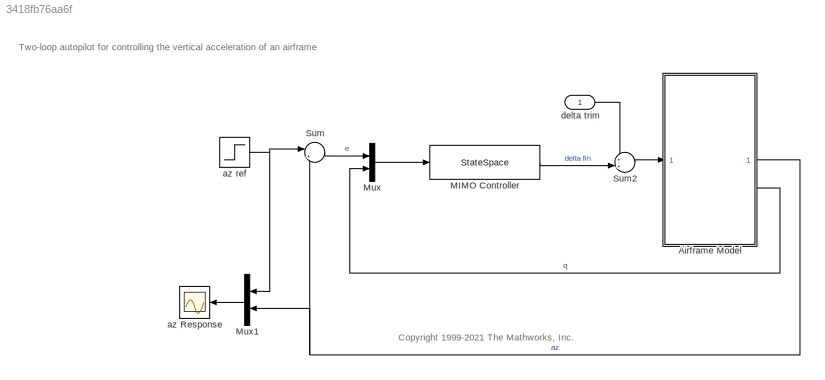
MODEL slx_3418fb76aa6f
KIND model
CONFIG AbsTol = 1e-6
CONFIG EnableMultiTasking = off
CONFIG FixedStep = auto
CONFIG MaxStep = auto
CONFIG MinStep = auto
CONFIG RelTol = 1e-3
CONFIG SampleTimeConstraint = Unconstrained
CONFIG SolverName = ode23t
CONFIG StartTime = 0.0
CONFIG StopTime = 5
WORKSPACE source: mxarray member
WORKSPACE Beamwidth = 0.174532925199
WORKSPACE Cm_alpha = [7.78 7.179815 6.59412 6.024205 5.47136 4.936875 4.42204 3.928145 3.45648 3.008335 2.585 2.187765 ... (205 elements, 41x5)]
WORKSPACE Cm_el = -11.8029305797
WORKSPACE Cm_q = -1.719
WORKSPACE Cx_alpha = [-0.3 -0.3 -0.3 -0.3 -0.3 -0.3 -0.3 -0.3 -0.3 -0.3 -0.3 -0.3 ... (205 elements, 41x5)]
WORKSPACE Cz_alpha = [7.47866666667 7.00150633333 6.531504 6.06927766667 5.61544533333 5.170625 4.73543466667 4.31049233333 3.896416 3.49382366667 3.10333333333 2.725563 ... (205 elements, 41x5)]
WORKSPACE Cz_el = -1.94805650344
WORKSPACE Iyy = 247.436636441
WORKSPACE K_r = -0.02
WORKSPACE Kg2slug = 0.0685218
WORKSPACE Ks = 125.663706144
WORKSPACE L = 0.0065
WORKSPACE M = [2 2 2 2 2 2 2 2 2 2 2 2 ... (205 elements, 41x5)]
WORKSPACE Mach_vec = [2 2.5 3 3.5 4]
WORKSPACE P0 = 101325
WORKSPACE R = 287.26
WORKSPACE S_ref = 0.0408773349839
WORKSPACE T0 = 288.16
WORKSPACE Thrust = 10000
WORKSPACE al = [-20 -19 -18 -17 -16 -15 -14 -13 -12 -11 -10 -9 ... (205 elements, 41x5)]
WORKSPACE alpha_ini = 0
WORKSPACE alpha_vec = [-0.349065850399 -0.331612557879 -0.314159265359 -0.296705972839 -0.279252680319 -0.261799387799 -0.244346095279 -0.226892802759 -0.209439510239 -0.191986217719 -0.174532925199 -0.157079632679 ... (41 elements, 41x1)]
WORKSPACE am = 0.000215
WORKSPACE an = 0.000103
WORKSPACE bm = -0.0195
WORKSPACE bn = -0.00945
WORKSPACE cm = 0.051
WORKSPACE cn = -0.1696
WORKSPACE d2r = 0.0174532925199
WORKSPACE d_ref = 0.228599992685
WORKSPACE fin_act_0 = 0
WORKSPACE fin_max = 0.523598775598
WORKSPACE fin_maxrate = 8.72664625997
WORKSPACE fin_min = -0.523598775598
WORKSPACE g = 9.81
WORKSPACE gam = 1.403
WORKSPACE h_ini = 3047.99990246
WORKSPACE h_trop = 11000
WORKSPACE l_acc = 0.5
WORKSPACE m2ft = 3.28084
WORKSPACE mass = 204.022661401
WORKSPACE max_gimbal = 0.610865238198
WORKSPACE min_gimbal = -0.610865238198
WORKSPACE pos_tgt = [4500 -3547.99990246]
WORKSPACE q_ini = 0
WORKSPACE rho0 = 1.225
WORKSPACE theta_ini = 0
WORKSPACE theta_tgt = 3.14159265359
WORKSPACE tors = 0.05
WORKSPACE v_ini = 984
WORKSPACE v_tgt = 328
WORKSPACE wgyro = 628.318530718
WORKSPACE wn_fin = 150
WORKSPACE wn_hom = 7
WORKSPACE x_ini = 0
WORKSPACE z_fin = 0.7
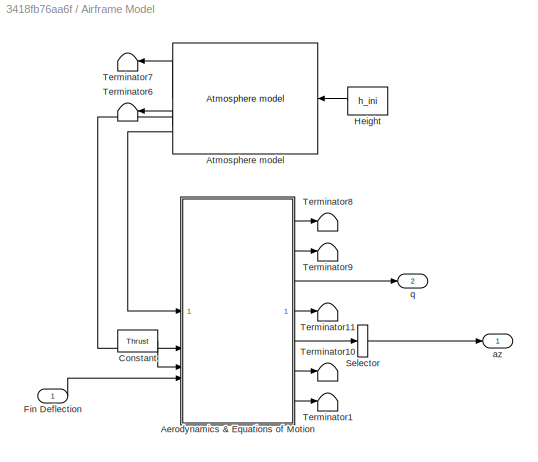
BLOCK [SubSystem] Airframe Model
  RTWMemSecDataConstants = Default
  RTWMemSecDataInternal = Default
  RTWMemSecDataParameters = Default
  RTWMemSecFuncExecute = Default
  RTWMemSecFuncInitTerm = Default
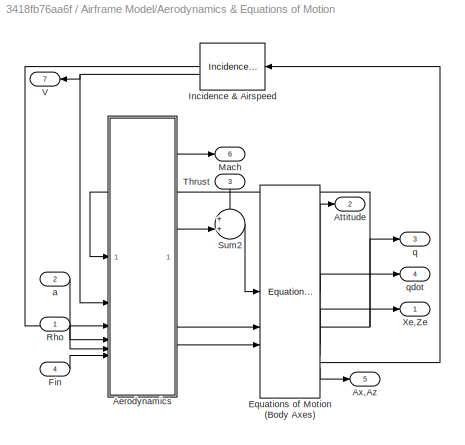
BLOCK [SubSystem] Airframe Model/Aerodynamics & Equations of Motion
  RTWMemSecDataConstants = Default
  RTWMemSecDataInternal = Default
  RTWMemSecDataParameters = Default
  RTWMemSecFuncExecute = Default
  RTWMemSecFuncInitTerm = Default
BLOCK [Reference] Airframe Model/Aerodynamics & Equations of Motion/ Equations of Motion (Body Axes)  REF=aerospace/3DoF  (lib defined in mdl_cf564d925549, slx_1354fe9238a2, +3 more)
Equations
of
Motion / Equations of Motion
(Body Axes)
  SourceBlock = aerospace/3DoF\nEquations\nof\nMotion / Equations of Motion\n(Body Axes)
  SourceType = 3 DOF equations of motion
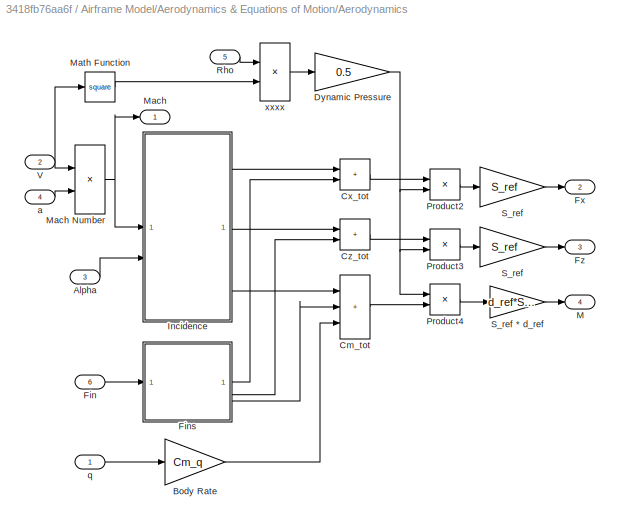
BLOCK [SubSystem] Airframe Model/Aerodynamics & Equations of Motion/Aerodynamics
  RTWMemSecDataConstants = Default
  RTWMemSecDataInternal = Default
  RTWMemSecDataParameters = Default
  RTWMemSecFuncExecute = Default
  RTWMemSecFuncInitTerm = Default
BLOCK [Outport] Airframe Model/Aerodynamics & Equations of Motion/Aerodynamics/ M
  InitialOutput = 0
  Port = 4
BLOCK [Outport] Airframe Model/Aerodynamics & Equations of Motion/Aerodynamics/ Mach
  InitialOutput = 0
  NameLocation = top
BLOCK [Inport] Airframe Model/Aerodynamics & Equations of Motion/Aerodynamics/Alpha
  Port = 3
BLOCK [Gain] Airframe Model/Aerodynamics & Equations of Motion/Aerodynamics/Body Rate
  Gain = Cm_q
  OutDataTypeStr = Inherit: Same as input
  ParamDataTypeStr = Inherit: Same as input
  SaturateOnIntegerOverflow = on
BLOCK [Sum] Airframe Model/Aerodynamics & Equations of Motion/Aerodynamics/Cm_tot
  IconShape = rectangular
  InputSameDT = on
  Inputs = +++
  OutDataTypeStr = Inherit: Same as first input
  SaturateOnIntegerOverflow = on
BLOCK [Sum] Airframe Model/Aerodynamics & Equations of Motion/Aerodynamics/Cx_tot
  IconShape = rectangular
  InputSameDT = on
  OutDataTypeStr = Inherit: Same as first input
  SaturateOnIntegerOverflow = on
BLOCK [Sum] Airframe Model/Aerodynamics & Equations of Motion/Aerodynamics/Cz_tot
  IconShape = rectangular
  InputSameDT = on
  OutDataTypeStr = Inherit: Same as first input
  SaturateOnIntegerOverflow = on
BLOCK [Gain] Airframe Model/Aerodynamics & Equations of Motion/Aerodynamics/Dynamic Pressure
  Gain = 0.5
  OutDataTypeStr = Inherit: Same as input
  ParamDataTypeStr = Inherit: Same as input
  SaturateOnIntegerOverflow = on
BLOCK [Inport] Airframe Model/Aerodynamics & Equations of Motion/Aerodynamics/Fin
  Port = 6
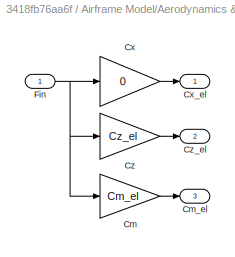
BLOCK [SubSystem] Airframe Model/Aerodynamics & Equations of Motion/Aerodynamics/Fins
  RTWMemSecDataConstants = Default
  RTWMemSecDataInternal = Default
  RTWMemSecDataParameters = Default
  RTWMemSecFuncExecute = Default
  RTWMemSecFuncInitTerm = Default
BLOCK [Gain] Airframe Model/Aerodynamics & Equations of Motion/Aerodynamics/Fins/Cm
  Gain = Cm_el
  OutDataTypeStr = Inherit: Same as input
  ParamDataTypeStr = Inherit: Same as input
  SaturateOnIntegerOverflow = on
BLOCK [Outport] Airframe Model/Aerodynamics & Equations of Motion/Aerodynamics/Fins/Cm_el
  InitialOutput = 0
  Port = 3
BLOCK [Gain] Airframe Model/Aerodynamics & Equations of Motion/Aerodynamics/Fins/Cx
  Gain = 0
  OutDataTypeStr = Inherit: Same as input
  ParamDataTypeStr = Inherit: Same as input
  SaturateOnIntegerOverflow = on
BLOCK [Outport] Airframe Model/Aerodynamics & Equations of Motion/Aerodynamics/Fins/Cx_el
  InitialOutput = 0
BLOCK [Gain] Airframe Model/Aerodynamics & Equations of Motion/Aerodynamics/Fins/Cz
  Gain = Cz_el
  OutDataTypeStr = Inherit: Same as input
  ParamDataTypeStr = Inherit: Same as input
  SaturateOnIntegerOverflow = on
BLOCK [Outport] Airframe Model/Aerodynamics & Equations of Motion/Aerodynamics/Fins/Cz_el
  InitialOutput = 0
  Port = 2
BLOCK [Inport] Airframe Model/Aerodynamics & Equations of Motion/Aerodynamics/Fins/Fin
BLOCK [Outport] Airframe Model/Aerodynamics & Equations of Motion/Aerodynamics/Fx
  InitialOutput = [0]
  Port = 2
BLOCK [Outport] Airframe Model/Aerodynamics & Equations of Motion/Aerodynamics/Fz
  InitialOutput = 0
  Port = 3
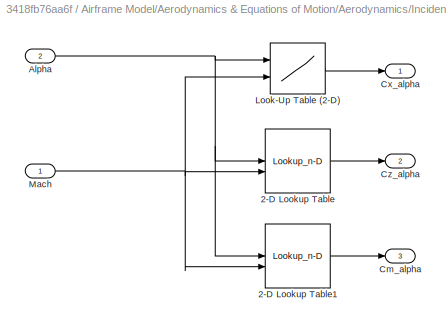
BLOCK [SubSystem] Airframe Model/Aerodynamics & Equations of Motion/Aerodynamics/Incidence
  RTWMemSecDataConstants = Default
  RTWMemSecDataInternal = Default
  RTWMemSecDataParameters = Default
  RTWMemSecFuncExecute = Default
  RTWMemSecFuncInitTerm = Default
BLOCK [Lookup_n-D] Airframe Model/Aerodynamics & Equations of Motion/Aerodynamics/Incidence/2-D Lookup Table
  BreakpointsForDimension1 = alpha_vec
  BreakpointsForDimension2 = Mach_vec
  InputPortMap = u0,u1
  RndMeth = Simplest
  Table = Cz_alpha
BLOCK [Lookup_n-D] Airframe Model/Aerodynamics & Equations of Motion/Aerodynamics/Incidence/2-D Lookup Table1
  BreakpointsForDimension1 = alpha_vec
  BreakpointsForDimension2 = Mach_vec
  InputPortMap = u0,u1
  RndMeth = Simplest
  Table = Cm_alpha
BLOCK [Inport] Airframe Model/Aerodynamics & Equations of Motion/Aerodynamics/Incidence/Alpha
  Port = 2
BLOCK [Outport] Airframe Model/Aerodynamics & Equations of Motion/Aerodynamics/Incidence/Cm_alpha
  InitialOutput = 0
  Port = 3
BLOCK [Outport] Airframe Model/Aerodynamics & Equations of Motion/Aerodynamics/Incidence/Cx_alpha
  InitialOutput = 0
BLOCK [Outport] Airframe Model/Aerodynamics & Equations of Motion/Aerodynamics/Incidence/Cz_alpha
  InitialOutput = 0
  Port = 2
BLOCK [Lookup2D] Airframe Model/Aerodynamics & Equations of Motion/Aerodynamics/Incidence/Look-Up Table (2-D)
  ColumnIndex = Mach_vec
  InputSameDT = off
  RowIndex = alpha_vec
  Table = Cx_alpha
BLOCK [Inport] Airframe Model/Aerodynamics & Equations of Motion/Aerodynamics/Incidence/Mach
BLOCK [Product] Airframe Model/Aerodynamics & Equations of Motion/Aerodynamics/Mach Number
  InputSameDT = on
  Inputs = */
  OutDataTypeStr = Inherit: Same as first input
  SaturateOnIntegerOverflow = on
BLOCK [Math] Airframe Model/Aerodynamics & Equations of Motion/Aerodynamics/Math Function
  Operator = square
  SignedPower = on
BLOCK [Product] Airframe Model/Aerodynamics & Equations of Motion/Aerodynamics/Product2
  InputSameDT = on
  OutDataTypeStr = Inherit: Same as first input
  SaturateOnIntegerOverflow = on
BLOCK [Product] Airframe Model/Aerodynamics & Equations of Motion/Aerodynamics/Product3
  InputSameDT = on
  OutDataTypeStr = Inherit: Same as first input
  SaturateOnIntegerOverflow = on
BLOCK [Product] Airframe Model/Aerodynamics & Equations of Motion/Aerodynamics/Product4
  InputSameDT = on
  OutDataTypeStr = Inherit: Same as first input
  SaturateOnIntegerOverflow = on
BLOCK [Inport] Airframe Model/Aerodynamics & Equations of Motion/Aerodynamics/Rho
  NameLocation = top
  Port = 5
BLOCK [Gain] Airframe Model/Aerodynamics & Equations of Motion/Aerodynamics/S_ref
  Gain = S_ref
  OutDataTypeStr = Inherit: Same as input
  ParamDataTypeStr = Inherit: Same as input
  SaturateOnIntegerOverflow = on
BLOCK [Gain] Airframe Model/Aerodynamics & Equations of Motion/Aerodynamics/S_ref 
  Gain = S_ref
  OutDataTypeStr = Inherit: Same as input
  ParamDataTypeStr = Inherit: Same as input
  SaturateOnIntegerOverflow = on
BLOCK [Gain] Airframe Model/Aerodynamics & Equations of Motion/Aerodynamics/S_ref * d_ref
  Gain = d_ref*S_ref
  OutDataTypeStr = Inherit: Same as input
  ParamDataTypeStr = Inherit: Same as input
  SaturateOnIntegerOverflow = on
BLOCK [Inport] Airframe Model/Aerodynamics & Equations of Motion/Aerodynamics/V
  Port = 2
BLOCK [Inport] Airframe Model/Aerodynamics & Equations of Motion/Aerodynamics/a
  Port = 4
BLOCK [Inport] Airframe Model/Aerodynamics & Equations of Motion/Aerodynamics/q
BLOCK [Product] Airframe Model/Aerodynamics & Equations of Motion/Aerodynamics/xxxx
  InputSameDT = on
  OutDataTypeStr = Inherit: Same as first input
  SaturateOnIntegerOverflow = on
BLOCK [Outport] Airframe Model/Aerodynamics & Equations of Motion/Attitude
  InitialOutput = 0
  Port = 2
BLOCK [Outport] Airframe Model/Aerodynamics & Equations of Motion/Ax,Az
  InitialOutput = 0
  Port = 5
BLOCK [Inport] Airframe Model/Aerodynamics & Equations of Motion/Fin
  Port = 4
BLOCK [Reference] Airframe Model/Aerodynamics & Equations of Motion/Incidence & Airspeed  REF=aerospace/3DoF  (lib defined in mdl_cf564d925549, slx_1354fe9238a2, +3 more)
Equations
of
Motion /Incidence 
& Airspeed
  NameLocation = top
  SourceBlock = aerospace/3DoF\nEquations\nof\nMotion /Incidence \n& Airspeed
  SourceType = Incidence and Airspeed
BLOCK [Outport] Airframe Model/Aerodynamics & Equations of Motion/Mach
  InitialOutput = 0
  NameLocation = top
  Port = 6
BLOCK [Inport] Airframe Model/Aerodynamics & Equations of Motion/Rho
BLOCK [Sum] Airframe Model/Aerodynamics & Equations of Motion/Sum2
  InputSameDT = on
  Inputs = ++|
  OutDataTypeStr = Inherit: Same as first input
  SaturateOnIntegerOverflow = on
BLOCK [Inport] Airframe Model/Aerodynamics & Equations of Motion/Thrust
  NameLocation = left
  Port = 3
BLOCK [Outport] Airframe Model/Aerodynamics & Equations of Motion/V
  InitialOutput = 0
  Port = 7
BLOCK [Outport] Airframe Model/Aerodynamics & Equations of Motion/Xe,Ze
  InitialOutput = 0
BLOCK [Inport] Airframe Model/Aerodynamics & Equations of Motion/a
  Port = 2
BLOCK [Outport] Airframe Model/Aerodynamics & Equations of Motion/q
  InitialOutput = 0
  Port = 3
BLOCK [Outport] Airframe Model/Aerodynamics & Equations of Motion/qdot
  InitialOutput = 0
  Port = 4
BLOCK [Reference] Airframe Model/Atmosphere model  REF=aerospace/Atmosphere/Atmosphere  (lib defined in mdl_cf564d925549, slx_1354fe9238a2, +3 more)
model
  SourceBlock = aerospace/Atmosphere/Atmosphere\nmodel
  SourceType = Atmosphere Model
BLOCK [Constant] Airframe Model/Constant
  Value = Thrust
BLOCK [Inport] Airframe Model/Fin Deflection
BLOCK [Constant] Airframe Model/Height
  Value = h_ini
BLOCK [Selector] Airframe Model/Selector
  IndexOptions = Index vector (dialog)
  Indices = [2]
  InputPortWidth = 2
  OutputSizes = 1
BLOCK [Terminator] Airframe Model/Terminator1
BLOCK [Terminator] Airframe Model/Terminator10
BLOCK [Terminator] Airframe Model/Terminator11
BLOCK [Terminator] Airframe Model/Terminator6
BLOCK [Terminator] Airframe Model/Terminator7
BLOCK [Terminator] Airframe Model/Terminator8
BLOCK [Terminator] Airframe Model/Terminator9
BLOCK [Outport] Airframe Model/az
  InitialOutput = 0
BLOCK [Outport] Airframe Model/q
  InitialOutput = 0
  Port = 2
BLOCK [StateSpace] MIMO Controller
  A = [0 0.08;0 0]
  B = [0.003 1;0.125 0]
  C = [1.5 0]
  D = [0 0]
  InitialCondition = 0
BLOCK [Mux] Mux
  DisplayOption = bar
  Inputs = 2
BLOCK [Mux] Mux1
  DisplayOption = bar
  Inputs = 2
  NameLocation = top
BLOCK [Sum] Sum
  Inputs = |+-
  SaturateOnIntegerOverflow = on
BLOCK [Sum] Sum2
  Inputs = ++|
BLOCK [Scope] az Response
  Floating = off
  NumInputPorts = 1
  ScopeSpecificationString = Simulink.scopes.TimeScopeBlockCfg('CurrentConfiguration', extmgr.ConfigurationSet(extmgr.Configuration('Core','General UI',true,'ShowNewAction',false,'ShowLoadConfigSet',false,'ShowSaveConfigSet',false,'DisplayFullSourceName',false,'MessageLogAutoOpenMode','for warn/fail messages','MessageLogDialogPosition',[20 520 450 500],'ShowMainToolbar',true,'ShowPlaybackToolbar',false,'ShowStatusbar',true,'S...<+3011ch>
BLOCK [Step] az ref
  After = 200
  NameLocation = top
  SampleTime = 0
BLOCK [Inport] delta trim
ANNOTATION (root): <copyright redacted>
ANNOTATION (root): Two-loop autopilot for controlling the vertical acceleration of an airframe
LINE Airframe Model/Aerodynamics & Equations of Motion/ Equations of Motion (Body Axes):1 -> Airframe Model/Aerodynamics & Equations of Motion/Attitude:1
NET Airframe Model/Aerodynamics & Equations of Motion/ Equations of Motion (Body Axes):2 -> Airframe Model/Aerodynamics & Equations of Motion/Aerodynamics:1, Airframe Model/Aerodynamics & Equations of Motion/q:1
LINE Airframe Model/Aerodynamics & Equations of Motion/ Equations of Motion (Body Axes):3 -> Airframe Model/Aerodynamics & Equations of Motion/qdot:1
LINE Airframe Model/Aerodynamics & Equations of Motion/ Equations of Motion (Body Axes):4 -> Airframe Model/Aerodynamics & Equations of Motion/Xe,Ze:1
LINE Airframe Model/Aerodynamics & Equations of Motion/ Equations of Motion (Body Axes):5 -> Airframe Model/Aerodynamics & Equations of Motion/Incidence & Airspeed:1
LINE Airframe Model/Aerodynamics & Equations of Motion/ Equations of Motion (Body Axes):6 -> Airframe Model/Aerodynamics & Equations of Motion/Ax,Az:1
LINE Airframe Model/Aerodynamics & Equations of Motion/Aerodynamics/Alpha:1 -> Airframe Model/Aerodynamics & Equations of Motion/Aerodynamics/Incidence:2
LINE Airframe Model/Aerodynamics & Equations of Motion/Aerodynamics/Body Rate:1 -> Airframe Model/Aerodynamics & Equations of Motion/Aerodynamics/Cm_tot:3
LINE Airframe Model/Aerodynamics & Equations of Motion/Aerodynamics/Cm_tot:1 -> Airframe Model/Aerodynamics & Equations of Motion/Aerodynamics/Product4:2
LINE Airframe Model/Aerodynamics & Equations of Motion/Aerodynamics/Cx_tot:1 -> Airframe Model/Aerodynamics & Equations of Motion/Aerodynamics/Product2:1
LINE Airframe Model/Aerodynamics & Equations of Motion/Aerodynamics/Cz_tot:1 -> Airframe Model/Aerodynamics & Equations of Motion/Aerodynamics/Product3:1
NET Airframe Model/Aerodynamics & Equations of Motion/Aerodynamics/Dynamic Pressure:1 -> Airframe Model/Aerodynamics & Equations of Motion/Aerodynamics/Product2:2, Airframe Model/Aerodynamics & Equations of Motion/Aerodynamics/Product3:2, Airframe Model/Aerodynamics & Equations of Motion/Aerodynamics/Product4:1
LINE Airframe Model/Aerodynamics & Equations of Motion/Aerodynamics/Fin:1 -> Airframe Model/Aerodynamics & Equations of Motion/Aerodynamics/Fins:1
LINE Airframe Model/Aerodynamics & Equations of Motion/Aerodynamics/Fins/Cm:1 -> Airframe Model/Aerodynamics & Equations of Motion/Aerodynamics/Fins/Cm_el:1
LINE Airframe Model/Aerodynamics & Equations of Motion/Aerodynamics/Fins/Cx:1 -> Airframe Model/Aerodynamics & Equations of Motion/Aerodynamics/Fins/Cx_el:1
LINE Airframe Model/Aerodynamics & Equations of Motion/Aerodynamics/Fins/Cz:1 -> Airframe Model/Aerodynamics & Equations of Motion/Aerodynamics/Fins/Cz_el:1
NET Airframe Model/Aerodynamics & Equations of Motion/Aerodynamics/Fins/Fin:1 -> Airframe Model/Aerodynamics & Equations of Motion/Aerodynamics/Fins/Cm:1, Airframe Model/Aerodynamics & Equations of Motion/Aerodynamics/Fins/Cx:1, Airframe Model/Aerodynamics & Equations of Motion/Aerodynamics/Fins/Cz:1
LINE Airframe Model/Aerodynamics & Equations of Motion/Aerodynamics/Fins:1 -> Airframe Model/Aerodynamics & Equations of Motion/Aerodynamics/Cx_tot:2
LINE Airframe Model/Aerodynamics & Equations of Motion/Aerodynamics/Fins:2 -> Airframe Model/Aerodynamics & Equations of Motion/Aerodynamics/Cz_tot:2
LINE Airframe Model/Aerodynamics & Equations of Motion/Aerodynamics/Fins:3 -> Airframe Model/Aerodynamics & Equations of Motion/Aerodynamics/Cm_tot:2
LINE Airframe Model/Aerodynamics & Equations of Motion/Aerodynamics/Incidence/2-D Lookup Table1:1 -> Airframe Model/Aerodynamics & Equations of Motion/Aerodynamics/Incidence/Cm_alpha:1
LINE Airframe Model/Aerodynamics & Equations of Motion/Aerodynamics/Incidence/2-D Lookup Table:1 -> Airframe Model/Aerodynamics & Equations of Motion/Aerodynamics/Incidence/Cz_alpha:1
NET Airframe Model/Aerodynamics & Equations of Motion/Aerodynamics/Incidence/Alpha:1 -> Airframe Model/Aerodynamics & Equations of Motion/Aerodynamics/Incidence/2-D Lookup Table1:1, Airframe Model/Aerodynamics & Equations of Motion/Aerodynamics/Incidence/2-D Lookup Table:1, Airframe Model/Aerodynamics & Equations of Motion/Aerodynamics/Incidence/Look-Up Table (2-D):1
LINE Airframe Model/Aerodynamics & Equations of Motion/Aerodynamics/Incidence/Look-Up Table (2-D):1 -> Airframe Model/Aerodynamics & Equations of Motion/Aerodynamics/Incidence/Cx_alpha:1
NET Airframe Model/Aerodynamics & Equations of Motion/Aerodynamics/Incidence/Mach:1 -> Airframe Model/Aerodynamics & Equations of Motion/Aerodynamics/Incidence/2-D Lookup Table1:2, Airframe Model/Aerodynamics & Equations of Motion/Aerodynamics/Incidence/2-D Lookup Table:2, Airframe Model/Aerodynamics & Equations of Motion/Aerodynamics/Incidence/Look-Up Table (2-D):2
LINE Airframe Model/Aerodynamics & Equations of Motion/Aerodynamics/Incidence:1 -> Airframe Model/Aerodynamics & Equations of Motion/Aerodynamics/Cx_tot:1
LINE Airframe Model/Aerodynamics & Equations of Motion/Aerodynamics/Incidence:2 -> Airframe Model/Aerodynamics & Equations of Motion/Aerodynamics/Cz_tot:1
LINE Airframe Model/Aerodynamics & Equations of Motion/Aerodynamics/Incidence:3 -> Airframe Model/Aerodynamics & Equations of Motion/Aerodynamics/Cm_tot:1
NET Airframe Model/Aerodynamics & Equations of Motion/Aerodynamics/Mach Number:1 -> Airframe Model/Aerodynamics & Equations of Motion/Aerodynamics/ Mach:1, Airframe Model/Aerodynamics & Equations of Motion/Aerodynamics/Incidence:1
LINE Airframe Model/Aerodynamics & Equations of Motion/Aerodynamics/Math Function:1 -> Airframe Model/Aerodynamics & Equations of Motion/Aerodynamics/xxxx:2
LINE Airframe Model/Aerodynamics & Equations of Motion/Aerodynamics/Product2:1 -> Airframe Model/Aerodynamics & Equations of Motion/Aerodynamics/S_ref:1
LINE Airframe Model/Aerodynamics & Equations of Motion/Aerodynamics/Product3:1 -> Airframe Model/Aerodynamics & Equations of Motion/Aerodynamics/S_ref :1
LINE Airframe Model/Aerodynamics & Equations of Motion/Aerodynamics/Product4:1 -> Airframe Model/Aerodynamics & Equations of Motion/Aerodynamics/S_ref * d_ref:1
LINE Airframe Model/Aerodynamics & Equations of Motion/Aerodynamics/Rho:1 -> Airframe Model/Aerodynamics & Equations of Motion/Aerodynamics/xxxx:1
LINE Airframe Model/Aerodynamics & Equations of Motion/Aerodynamics/S_ref * d_ref:1 -> Airframe Model/Aerodynamics & Equations of Motion/Aerodynamics/ M:1
LINE Airframe Model/Aerodynamics & Equations of Motion/Aerodynamics/S_ref :1 -> Airframe Model/Aerodynamics & Equations of Motion/Aerodynamics/Fz:1
LINE Airframe Model/Aerodynamics & Equations of Motion/Aerodynamics/S_ref:1 -> Airframe Model/Aerodynamics & Equations of Motion/Aerodynamics/Fx:1
NET Airframe Model/Aerodynamics & Equations of Motion/Aerodynamics/V:1 -> Airframe Model/Aerodynamics & Equations of Motion/Aerodynamics/Mach Number:1, Airframe Model/Aerodynamics & Equations of Motion/Aerodynamics/Math Function:1
LINE Airframe Model/Aerodynamics & Equations of Motion/Aerodynamics/a:1 -> Airframe Model/Aerodynamics & Equations of Motion/Aerodynamics/Mach Number:2
LINE Airframe Model/Aerodynamics & Equations of Motion/Aerodynamics/q:1 -> Airframe Model/Aerodynamics & Equations of Motion/Aerodynamics/Body Rate:1
LINE Airframe Model/Aerodynamics & Equations of Motion/Aerodynamics/xxxx:1 -> Airframe Model/Aerodynamics & Equations of Motion/Aerodynamics/Dynamic Pressure:1
LINE Airframe Model/Aerodynamics & Equations of Motion/Aerodynamics:1 -> Airframe Model/Aerodynamics & Equations of Motion/Mach:1
LINE Airframe Model/Aerodynamics & Equations of Motion/Aerodynamics:2 -> Airframe Model/Aerodynamics & Equations of Motion/Sum2:2
LINE Airframe Model/Aerodynamics & Equations of Motion/Aerodynamics:3 -> Airframe Model/Aerodynamics & Equations of Motion/ Equations of Motion (Body Axes):2
LINE Airframe Model/Aerodynamics & Equations of Motion/Aerodynamics:4 -> Airframe Model/Aerodynamics & Equations of Motion/ Equations of Motion (Body Axes):3
LINE Airframe Model/Aerodynamics & Equations of Motion/Fin:1 -> Airframe Model/Aerodynamics & Equations of Motion/Aerodynamics:6
LINE Airframe Model/Aerodynamics & Equations of Motion/Incidence & Airspeed:1 -> Airframe Model/Aerodynamics & Equations of Motion/Aerodynamics:3
NET Airframe Model/Aerodynamics & Equations of Motion/Incidence & Airspeed:2 -> Airframe Model/Aerodynamics & Equations of Motion/Aerodynamics:2, Airframe Model/Aerodynamics & Equations of Motion/V:1
LINE Airframe Model/Aerodynamics & Equations of Motion/Rho:1 -> Airframe Model/Aerodynamics & Equations of Motion/Aerodynamics:5
LINE Airframe Model/Aerodynamics & Equations of Motion/Sum2:1 -> Airframe Model/Aerodynamics & Equations of Motion/ Equations of Motion (Body Axes):1
LINE Airframe Model/Aerodynamics & Equations of Motion/Thrust:1 -> Airframe Model/Aerodynamics & Equations of Motion/Sum2:1
LINE Airframe Model/Aerodynamics & Equations of Motion/a:1 -> Airframe Model/Aerodynamics & Equations of Motion/Aerodynamics:4
LINE Airframe Model/Aerodynamics & Equations of Motion:1 -> Airframe Model/Terminator8:1
LINE Airframe Model/Aerodynamics & Equations of Motion:2 -> Airframe Model/Terminator9:1
LINE Airframe Model/Aerodynamics & Equations of Motion:3 -> Airframe Model/q:1
LINE Airframe Model/Aerodynamics & Equations of Motion:4 -> Airframe Model/Terminator11:1
LINE Airframe Model/Aerodynamics & Equations of Motion:5 -> Airframe Model/Selector:1
LINE Airframe Model/Aerodynamics & Equations of Motion:6 -> Airframe Model/Terminator10:1
LINE Airframe Model/Aerodynamics & Equations of Motion:7 -> Airframe Model/Terminator1:1
LINE Airframe Model/Atmosphere model:1 -> Airframe Model/Terminator7:1
LINE Airframe Model/Atmosphere model:2 -> Airframe Model/Aerodynamics & Equations of Motion:2
LINE Airframe Model/Atmosphere model:3 -> Airframe Model/Terminator6:1
LINE Airframe Model/Atmosphere model:4 -> Airframe Model/Aerodynamics & Equations of Motion:1
LINE Airframe Model/Constant:1 -> Airframe Model/Aerodynamics & Equations of Motion:3
LINE Airframe Model/Fin Deflection:1 -> Airframe Model/Aerodynamics & Equations of Motion:4
LINE Airframe Model/Height:1 -> Airframe Model/Atmosphere model:1
LINE Airframe Model/Selector:1 -> Airframe Model/az:1
NET Airframe Model:1 -> Mux1:2, Sum:2
LINE Airframe Model:2 -> Mux:2
LINE MIMO Controller:1 -> Sum2:2
LINE Mux1:1 -> az Response:1
LINE Mux:1 -> MIMO Controller:1
LINE Sum2:1 -> Airframe Model:1
LINE Sum:1 -> Mux:1
NET az ref:1 -> Mux1:1, Sum:1
LINE delta trim:1 -> Sum2:1
note: NET lines group one-source signal fan-out (src -> all destinations, sorted); 1:1 wires keep LINE
